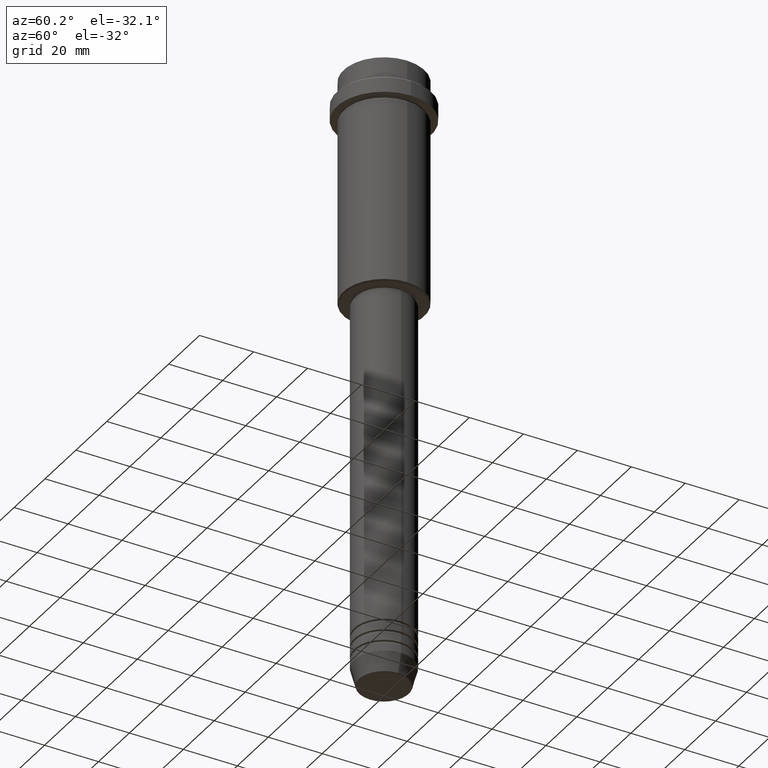
[diagram: clean part render]
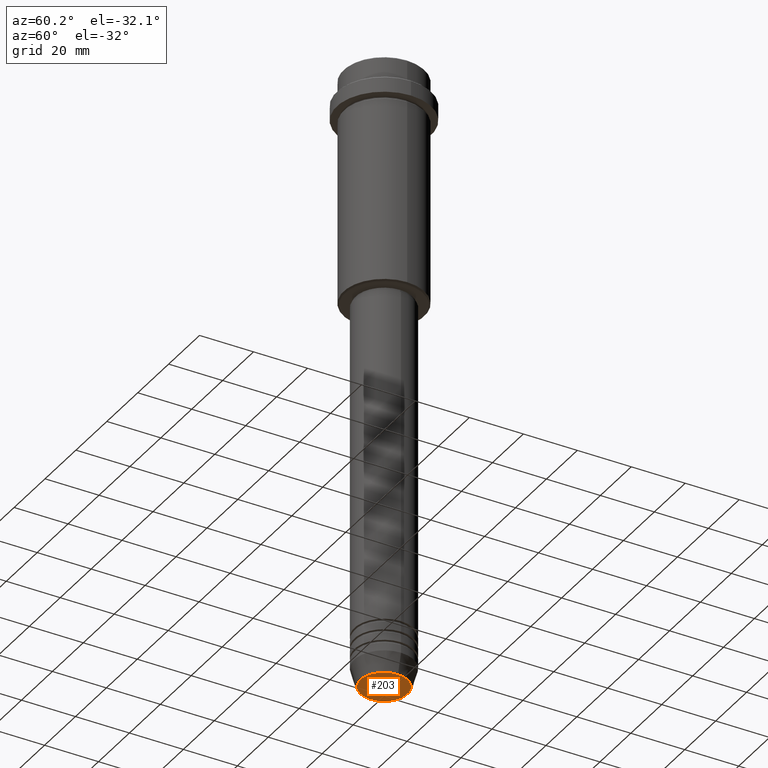
[diagram: same view with one face highlighted and labeled with its STEP entity id]
A machine part, auxiliary view. The second image highlights one B-rep face of the part: STEP entity #203.
In plain terms, the highlighted planar face has unit normal (0, -0, 1).
Its self-contained STEP definition (entity closure, byte-faithful):
#15 = CARTESIAN_POINT ( 'NONE',  ( 8.740692158992656502, 0.000000000000000000, -229.9999999999999716 ) ) ;
#84 = EDGE_CURVE ( 'NONE', #313, #1341, #853, .T. ) ;
#203 = ADVANCED_FACE ( 'NONE', ( #638 ), #861, .F. ) ;
#292 = CARTESIAN_POINT ( 'NONE',  ( 0.000000000000000000, 0.000000000000000000, -229.9999999999999716 ) ) ;
#313 = VERTEX_POINT ( 'NONE', #761 ) ;
#315 = CARTESIAN_POINT ( 'NONE',  ( 0.000000000000000000, 0.000000000000000000, -229.9999999999999716 ) ) ;
#332 = ORIENTED_EDGE ( 'NONE', *, *, #416, .T. ) ;
#416 = EDGE_CURVE ( 'NONE', #1341, #313, #1198, .T. ) ;
#429 = AXIS2_PLACEMENT_3D ( 'NONE', #315, #1076, #507 ) ;
#448 = DIRECTION ( 'NONE',  ( 0.000000000000000000, 0.000000000000000000, -1.000000000000000000 ) ) ;
#486 = ORIENTED_EDGE ( 'NONE', *, *, #84, .T. ) ;
#507 = DIRECTION ( 'NONE',  ( 1.000000000000000000, 0.000000000000000000, 0.000000000000000000 ) ) ;
#538 = CARTESIAN_POINT ( 'NONE',  ( 0.000000000000000000, 0.000000000000000000, -229.9999999999999716 ) ) ;
#638 = FACE_OUTER_BOUND ( 'NONE', #670, .T. ) ;
#663 = AXIS2_PLACEMENT_3D ( 'NONE', #292, #1254, #1158 ) ;
#670 = EDGE_LOOP ( 'NONE', ( #332, #486 ) ) ;
#761 = CARTESIAN_POINT ( 'NONE',  ( -8.740692158992656502, 1.099999016768739653E-15, -229.9999999999999716 ) ) ;
#853 = CIRCLE ( 'NONE', #663, 8.740692158992656502 ) ;
#861 = PLANE ( 'NONE',  #429 ) ;
#1076 = DIRECTION ( 'NONE',  ( 0.000000000000000000, -0.000000000000000000, 1.000000000000000000 ) ) ;
#1083 = AXIS2_PLACEMENT_3D ( 'NONE', #538, #448, #1213 ) ;
#1158 = DIRECTION ( 'NONE',  ( 1.000000000000000000, 0.000000000000000000, 0.000000000000000000 ) ) ;
#1198 = CIRCLE ( 'NONE', #1083, 8.740692158992656502 ) ;
#1213 = DIRECTION ( 'NONE',  ( 1.000000000000000000, 0.000000000000000000, 0.000000000000000000 ) ) ;
#1254 = DIRECTION ( 'NONE',  ( 0.000000000000000000, 0.000000000000000000, -1.000000000000000000 ) ) ;
#1341 = VERTEX_POINT ( 'NONE', #15 ) ;